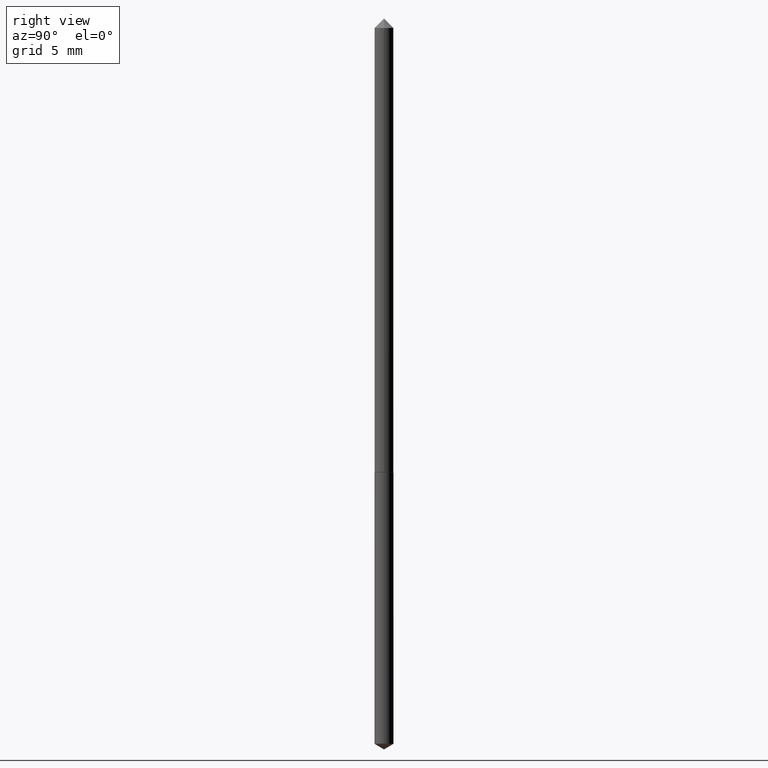
[diagram: clean part render]
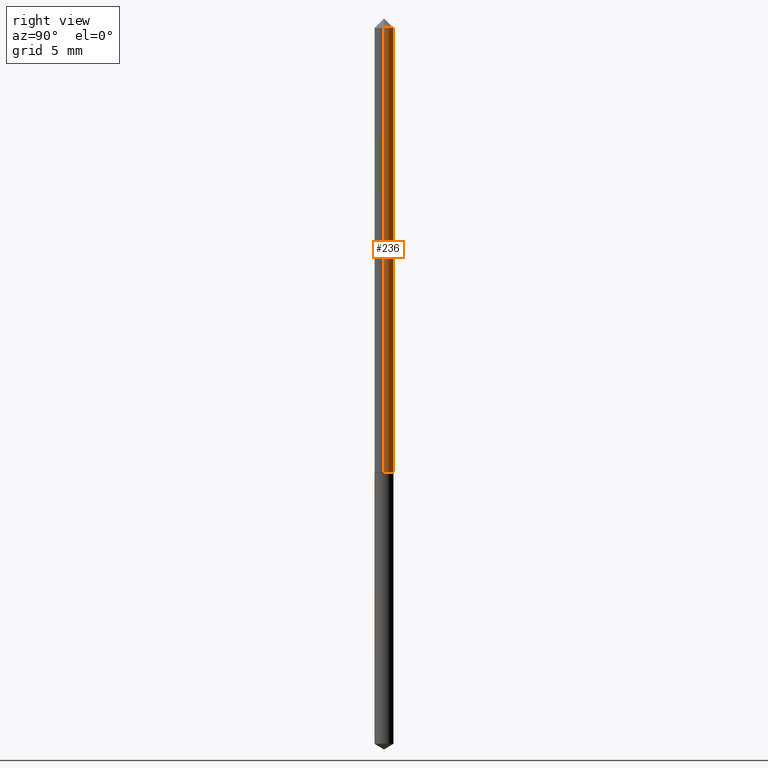
[diagram: same view with one face highlighted and labeled with its STEP entity id]
A machine part, right view. The second image highlights one B-rep face of the part: STEP entity #236.
In plain terms, the highlighted cylindrical surface (edge-blend (fillet) strip) has radius 0.4064 mm, axis along (-0, 0, 1).
Its self-contained STEP definition (entity closure, byte-faithful):
#36 = CARTESIAN_POINT ( 'NONE',  ( -0.01600000000000004891, 1.136868377216163772E-16, -7.870296144407873858E-31 ) ) ;
#46 = ORIENTED_EDGE ( 'NONE', *, *, #188, .F. ) ;
#67 = ORIENTED_EDGE ( 'NONE', *, *, #362, .T. ) ;
#74 = LINE ( 'NONE', #36, #334 ) ;
#75 = CYLINDRICAL_SURFACE ( 'NONE', #127, 0.01600000000000004891 ) ;
#78 = CARTESIAN_POINT ( 'NONE',  ( 0.01600000000000009401, -2.840320069148899113E-15, -0.7814999999999999725 ) ) ;
#82 = DIRECTION ( 'NONE',  ( -2.445468806185136597E-29, 3.491481338843145583E-15, 1.000000000000000000 ) ) ;
#93 = VERTEX_POINT ( 'NONE', #283 ) ;
#97 = CARTESIAN_POINT ( 'NONE',  ( 0.000000000000000000, 0.000000000000000000, 0.000000000000000000 ) ) ;
#98 = CIRCLE ( 'NONE', #255, 0.01600000000000009401 ) ;
#101 = DIRECTION ( 'NONE',  ( -2.445468806185136877E-29, 3.491481338843145188E-15, 1.000000000000000000 ) ) ;
#112 = DIRECTION ( 'NONE',  ( 1.000000000000000000, -6.982962677686261189E-15, 0.000000000000000000 ) ) ;
#114 = EDGE_LOOP ( 'NONE', ( #67, #337, #219, #46 ) ) ;
#116 = VERTEX_POINT ( 'NONE', #311 ) ;
#120 = VERTEX_POINT ( 'NONE', #130 ) ;
#126 = DIRECTION ( 'NONE',  ( -2.445468806185136597E-29, 3.491481338843145583E-15, 1.000000000000000000 ) ) ;
#127 = AXIS2_PLACEMENT_3D ( 'NONE', #97, #126, #155 ) ;
#129 = LINE ( 'NONE', #234, #139 ) ;
#130 = CARTESIAN_POINT ( 'NONE',  ( 0.01600000000000000380, -2.208361946818292980E-16, -0.03125000000000020123 ) ) ;
#139 = VECTOR ( 'NONE', #101, 39.37007874015748143 ) ;
#148 = CARTESIAN_POINT ( 'NONE',  ( 7.642090019328601786E-31, -1.091087918388490144E-16, -0.03125000000000020123 ) ) ;
#151 = DIRECTION ( 'NONE',  ( -2.445468806185136877E-29, 3.491481338843145188E-15, 1.000000000000000000 ) ) ;
#155 = DIRECTION ( 'NONE',  ( 1.000000000000000000, -6.982962677686267499E-15, 4.876176775795936353E-29 ) ) ;
#159 = EDGE_CURVE ( 'NONE', #93, #116, #74, .T. ) ;
#188 = EDGE_CURVE ( 'NONE', #325, #120, #129, .T. ) ;
#197 = EDGE_CURVE ( 'NONE', #120, #116, #275, .T. ) ;
#219 = ORIENTED_EDGE ( 'NONE', *, *, #197, .F. ) ;
#234 = CARTESIAN_POINT ( 'NONE',  ( 0.01600000000000004891, -1.117274028429806164E-16, 7.801882841273521721E-31 ) ) ;
#236 = ADVANCED_FACE ( 'NONE', ( #316 ), #75, .T. ) ;
#255 = AXIS2_PLACEMENT_3D ( 'NONE', #267, #82, #112 ) ;
#267 = CARTESIAN_POINT ( 'NONE',  ( 1.911133872033684367E-29, -2.728592666305918152E-15, -0.7814999999999999725 ) ) ;
#275 = CIRCLE ( 'NONE', #295, 0.01600000000000000380 ) ;
#283 = CARTESIAN_POINT ( 'NONE',  ( -0.01600000000000009401, -2.614905828584301627E-15, -0.7814999999999999725 ) ) ;
#288 = DIRECTION ( 'NONE',  ( 1.000000000000000000, -6.982962677686266711E-15, 0.000000000000000000 ) ) ;
#295 = AXIS2_PLACEMENT_3D ( 'NONE', #148, #348, #288 ) ;
#311 = CARTESIAN_POINT ( 'NONE',  ( -0.01600000000000000380, -1.305163891350765523E-15, -0.03125000000000020123 ) ) ;
#316 = FACE_OUTER_BOUND ( 'NONE', #114, .T. ) ;
#325 = VERTEX_POINT ( 'NONE', #78 ) ;
#334 = VECTOR ( 'NONE', #151, 39.37007874015748143 ) ;
#337 = ORIENTED_EDGE ( 'NONE', *, *, #159, .T. ) ;
#348 = DIRECTION ( 'NONE',  ( -2.445468806185136597E-29, 3.491481338843145583E-15, 1.000000000000000000 ) ) ;
#362 = EDGE_CURVE ( 'NONE', #325, #93, #98, .T. ) ;